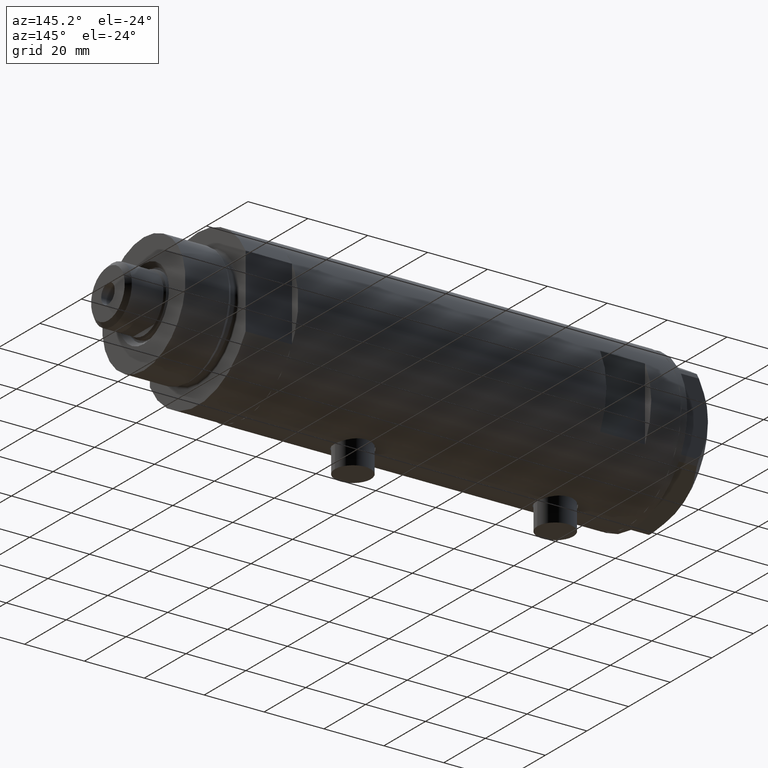
[diagram: clean part render]
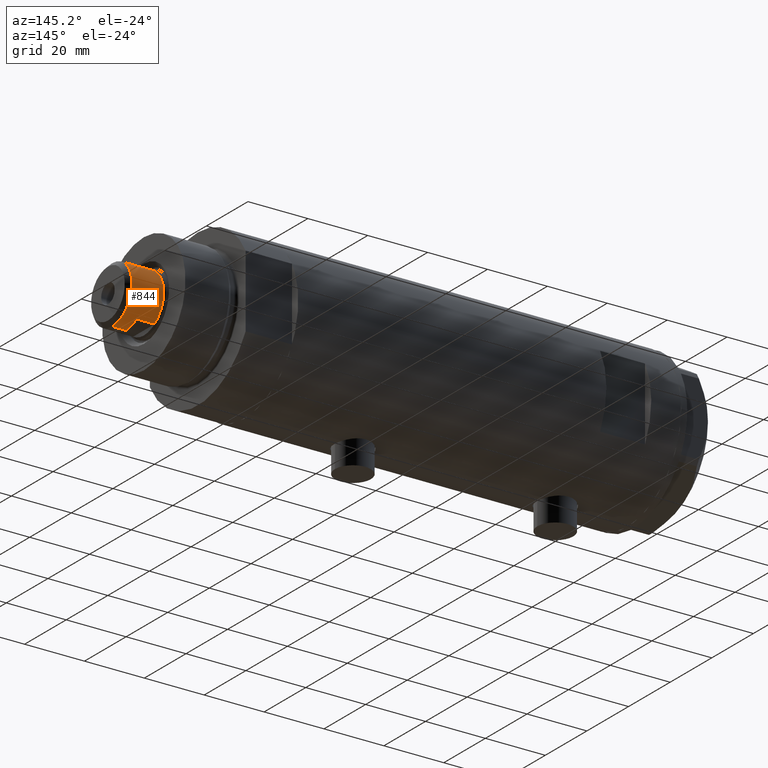
[diagram: same view with one face highlighted and labeled with its STEP entity id]
A machine part, auxiliary view. The second image highlights one B-rep face of the part: STEP entity #844.
In plain terms, the highlighted cylindrical surface (edge-blend (fillet) strip) has radius 9.5 mm, axis along (-1, -0, 0).
Its self-contained STEP definition (entity closure, byte-faithful):
#34 = CARTESIAN_POINT ( 'NONE',  ( 0.000000000000000000, 0.000000000000000000, 143.5999999999999943 ) ) ;
#128 = CARTESIAN_POINT ( 'NONE',  ( -9.500000000000000000, 0.000000000000000000, 143.5999999999999943 ) ) ;
#212 = VECTOR ( 'NONE', #4382, 1000.000000000000000 ) ;
#278 = DIRECTION ( 'NONE',  ( -1.000000000000000000, 0.000000000000000000, 0.000000000000000000 ) ) ;
#308 = FACE_OUTER_BOUND ( 'NONE', #2540, .T. ) ;
#318 = ORIENTED_EDGE ( 'NONE', *, *, #3812, .T. ) ;
#345 = EDGE_CURVE ( 'NONE', #528, #3807, #3730, .T. ) ;
#390 = ORIENTED_EDGE ( 'NONE', *, *, #345, .T. ) ;
#528 = VERTEX_POINT ( 'NONE', #1364 ) ;
#553 = LINE ( 'NONE', #1687, #3208 ) ;
#573 = DIRECTION ( 'NONE',  ( 1.000000000000000000, 0.000000000000000000, 0.000000000000000000 ) ) ;
#616 = CARTESIAN_POINT ( 'NONE',  ( -9.500000000000001776, 0.000000000000000000, 148.1999999999999886 ) ) ;
#621 = LINE ( 'NONE', #1684, #212 ) ;
#689 = CARTESIAN_POINT ( 'NONE',  ( 0.000000000000000000, 0.000000000000000000, 143.5999999999999943 ) ) ;
#746 = VECTOR ( 'NONE', #2343, 1000.000000000000000 ) ;
#844 = ADVANCED_FACE ( 'NONE', ( #308 ), #1314, .T. ) ;
#1259 = CARTESIAN_POINT ( 'NONE',  ( -7.982950582334829015, 5.150000000000015454, 137.5999999999999943 ) ) ;
#1307 = ORIENTED_EDGE ( 'NONE', *, *, #4025, .T. ) ;
#1314 = CYLINDRICAL_SURFACE ( 'NONE', #2856, 9.500000000000001776 ) ;
#1361 = CARTESIAN_POINT ( 'NONE',  ( 0.000000000000000000, 0.000000000000000000, 143.5999999999999943 ) ) ;
#1364 = CARTESIAN_POINT ( 'NONE',  ( 7.982950582334830791, 5.149999999999999467, 137.5999999999999943 ) ) ;
#1378 = CARTESIAN_POINT ( 'NONE',  ( -7.982950582334830791, 5.149999999999999467, 143.5999999999999943 ) ) ;
#1413 = VERTEX_POINT ( 'NONE', #4213 ) ;
#1502 = DIRECTION ( 'NONE',  ( 0.000000000000000000, 0.000000000000000000, 1.000000000000000000 ) ) ;
#1524 = DIRECTION ( 'NONE',  ( 1.000000000000000000, 0.000000000000000000, 0.000000000000000000 ) ) ;
#1548 = LINE ( 'NONE', #3055, #746 ) ;
#1684 = CARTESIAN_POINT ( 'NONE',  ( 9.500000000000001776, 1.163414459189985682E-15, 143.5999999999999943 ) ) ;
#1687 = CARTESIAN_POINT ( 'NONE',  ( -9.500000000000001776, 0.000000000000000000, 143.5999999999999943 ) ) ;
#2009 = CIRCLE ( 'NONE', #3914, 9.500000000000000000 ) ;
#2163 = AXIS2_PLACEMENT_3D ( 'NONE', #34, #1502, #1524 ) ;
#2176 = ORIENTED_EDGE ( 'NONE', *, *, #4018, .T. ) ;
#2178 = AXIS2_PLACEMENT_3D ( 'NONE', #2280, #3397, #4535 ) ;
#2280 = CARTESIAN_POINT ( 'NONE',  ( 0.000000000000000000, 0.000000000000000000, 148.1999999999999886 ) ) ;
#2338 = ORIENTED_EDGE ( 'NONE', *, *, #4353, .T. ) ;
#2343 = DIRECTION ( 'NONE',  ( -0.000000000000000000, -0.000000000000000000, -1.000000000000000000 ) ) ;
#2455 = ORIENTED_EDGE ( 'NONE', *, *, #4325, .T. ) ;
#2495 = DIRECTION ( 'NONE',  ( 0.000000000000000000, 0.000000000000000000, 1.000000000000000000 ) ) ;
#2540 = EDGE_LOOP ( 'NONE', ( #318, #1307, #2455, #2338, #390, #4785, #2176, #4225 ) ) ;
#2566 = VERTEX_POINT ( 'NONE', #616 ) ;
#2569 = CIRCLE ( 'NONE', #2163, 9.500000000000000000 ) ;
#2630 = CARTESIAN_POINT ( 'NONE',  ( 7.982950582334830791, 5.149999999999999467, 143.5999999999999943 ) ) ;
#2711 = DIRECTION ( 'NONE',  ( -0.000000000000000000, -0.000000000000000000, -1.000000000000000000 ) ) ;
#2737 = LINE ( 'NONE', #3452, #3027 ) ;
#2817 = DIRECTION ( 'NONE',  ( -0.000000000000000000, -0.000000000000000000, -1.000000000000000000 ) ) ;
#2841 = DIRECTION ( 'NONE',  ( 0.000000000000000000, 0.000000000000000000, 1.000000000000000000 ) ) ;
#2856 = AXIS2_PLACEMENT_3D ( 'NONE', #689, #2817, #278 ) ;
#2906 = DIRECTION ( 'NONE',  ( 1.000000000000000000, 0.000000000000000000, 0.000000000000000000 ) ) ;
#3027 = VECTOR ( 'NONE', #2711, 1000.000000000000000 ) ;
#3055 = CARTESIAN_POINT ( 'NONE',  ( 7.982950582334830791, 5.149999999999999467, 143.5999999999999943 ) ) ;
#3208 = VECTOR ( 'NONE', #3445, 1000.000000000000000 ) ;
#3353 = VERTEX_POINT ( 'NONE', #3411 ) ;
#3397 = DIRECTION ( 'NONE',  ( 0.000000000000000000, 0.000000000000000000, -1.000000000000000000 ) ) ;
#3411 = CARTESIAN_POINT ( 'NONE',  ( 9.500000000000001776, 1.163414459189985682E-15, 148.1999999999999886 ) ) ;
#3445 = DIRECTION ( 'NONE',  ( -0.000000000000000000, -0.000000000000000000, -1.000000000000000000 ) ) ;
#3452 = CARTESIAN_POINT ( 'NONE',  ( -7.982950582334830791, 5.149999999999999467, 143.5999999999999943 ) ) ;
#3496 = EDGE_CURVE ( 'NONE', #2566, #3706, #553, .T. ) ;
#3706 = VERTEX_POINT ( 'NONE', #128 ) ;
#3730 = CIRCLE ( 'NONE', #4829, 9.500000000000008882 ) ;
#3807 = VERTEX_POINT ( 'NONE', #1259 ) ;
#3812 = EDGE_CURVE ( 'NONE', #2566, #3353, #3995, .T. ) ;
#3914 = AXIS2_PLACEMENT_3D ( 'NONE', #1361, #2841, #573 ) ;
#3995 = CIRCLE ( 'NONE', #2178, 9.500000000000001776 ) ;
#4018 = EDGE_CURVE ( 'NONE', #4493, #3706, #2009, .T. ) ;
#4025 = EDGE_CURVE ( 'NONE', #3353, #1413, #621, .T. ) ;
#4213 = CARTESIAN_POINT ( 'NONE',  ( 9.500000000000000000, 1.163414459189985485E-15, 143.5999999999999943 ) ) ;
#4225 = ORIENTED_EDGE ( 'NONE', *, *, #3496, .F. ) ;
#4226 = EDGE_CURVE ( 'NONE', #4493, #3807, #2737, .T. ) ;
#4325 = EDGE_CURVE ( 'NONE', #1413, #4834, #2569, .T. ) ;
#4353 = EDGE_CURVE ( 'NONE', #4834, #528, #1548, .T. ) ;
#4382 = DIRECTION ( 'NONE',  ( -0.000000000000000000, -0.000000000000000000, -1.000000000000000000 ) ) ;
#4493 = VERTEX_POINT ( 'NONE', #1378 ) ;
#4535 = DIRECTION ( 'NONE',  ( 1.000000000000000000, 0.000000000000000000, 0.000000000000000000 ) ) ;
#4785 = ORIENTED_EDGE ( 'NONE', *, *, #4226, .F. ) ;
#4786 = CARTESIAN_POINT ( 'NONE',  ( 0.000000000000000000, 0.000000000000000000, 137.5999999999999943 ) ) ;
#4829 = AXIS2_PLACEMENT_3D ( 'NONE', #4786, #2495, #2906 ) ;
#4834 = VERTEX_POINT ( 'NONE', #2630 ) ;